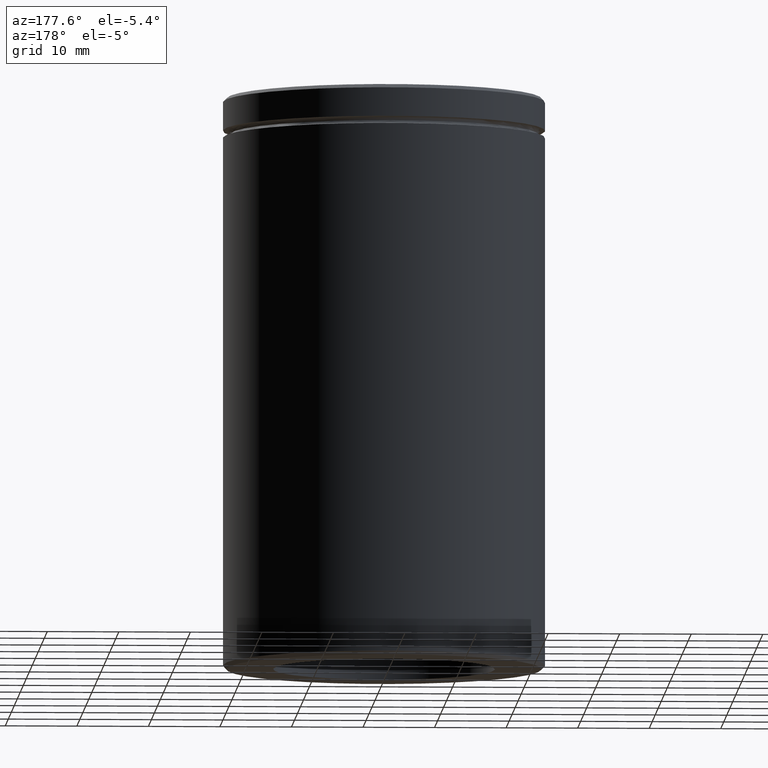
[diagram: clean part render]
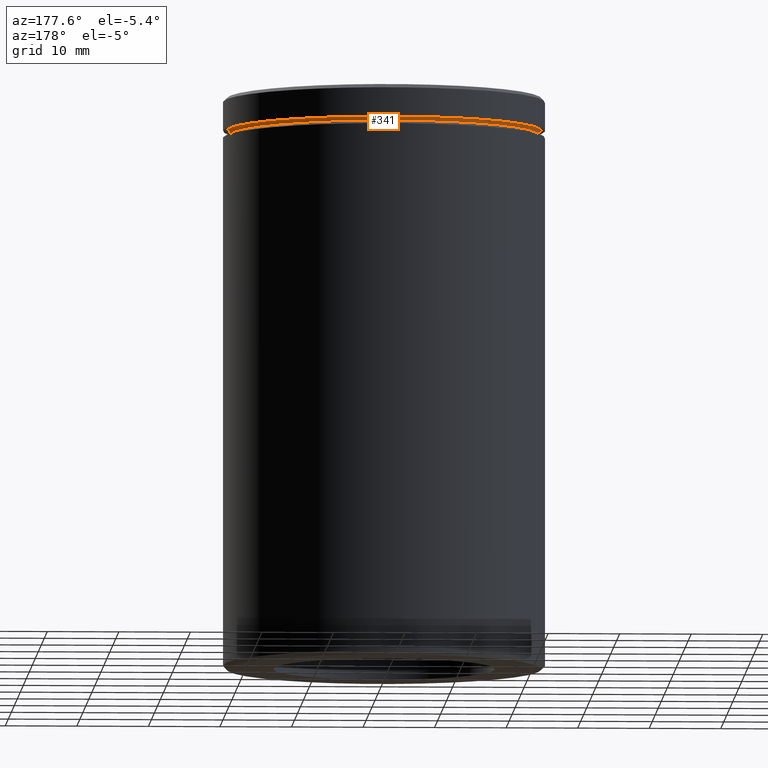
[diagram: same view with one face highlighted and labeled with its STEP entity id]
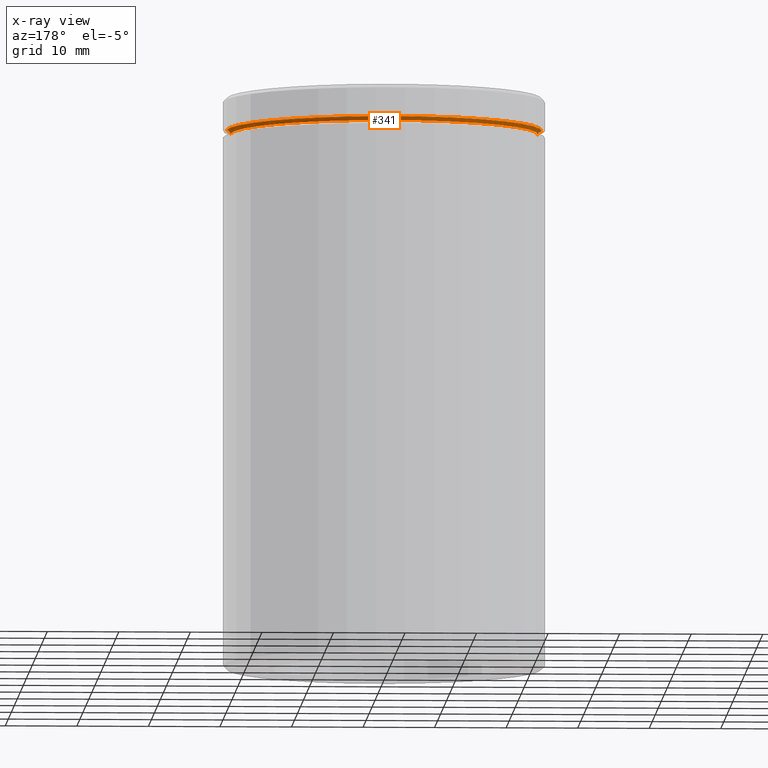
[diagram: x-ray of the same camera — body ghosted, the highlighted face saturated]
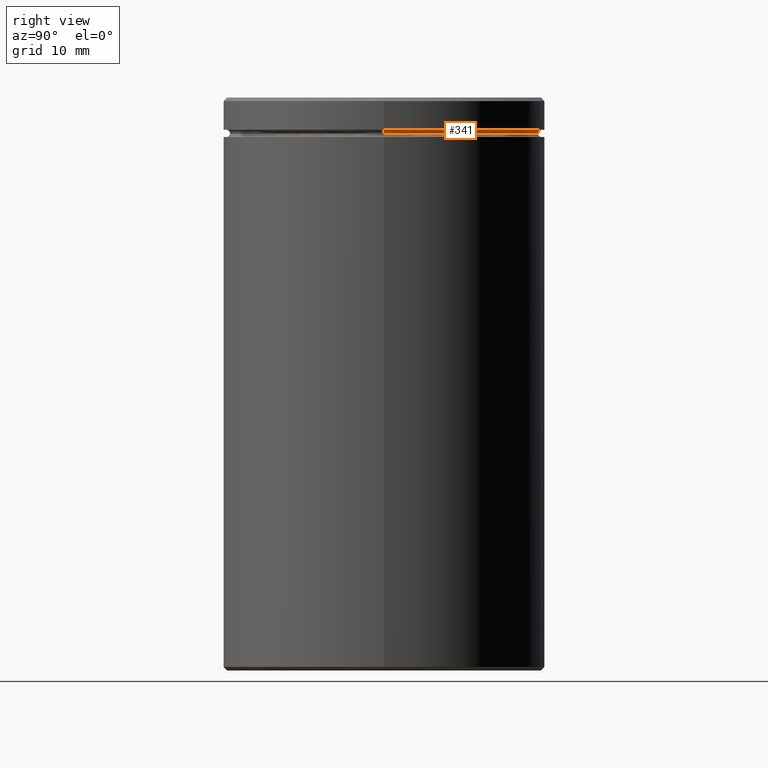
[diagram: same view with one face highlighted and labeled with its STEP entity id]
A machine part, auxiliary view. The second image highlights one B-rep face of the part: STEP entity #341.
The next image is the same camera in x-ray: the body ghosted, the highlighted face saturated — about 0% of this face is hidden behind the body in this view.
A second angle (right view) of the same face is appended — the face is thin or edge-on in the first view.
In plain terms, the highlighted toroidal blend (fillet) surface has major radius 22 mm and minor (blend) radius 0.5 mm.
Its self-contained STEP definition (entity closure, byte-faithful):
#8 = DIRECTION ( 'NONE',  ( -1.000000000000000000, 0.000000000000000000, 0.000000000000000000 ) ) ;
#9 = EDGE_LOOP ( 'NONE', ( #533, #306, #493, #554 ) ) ;
#19 = FACE_OUTER_BOUND ( 'NONE', #9, .T. ) ;
#45 = EDGE_CURVE ( 'NONE', #130, #136, #416, .T. ) ;
#51 = CIRCLE ( 'NONE', #569, 22.00000000000000000 ) ;
#65 = CARTESIAN_POINT ( 'NONE',  ( 0.000000000000000000, 0.000000000000000000, -4.999999999999999112 ) ) ;
#73 = CARTESIAN_POINT ( 'NONE',  ( 22.00000000000000000, 2.694222958124176809E-15, -5.000000000000000888 ) ) ;
#95 = DIRECTION ( 'NONE',  ( -0.000000000000000000, -0.000000000000000000, 1.000000000000000000 ) ) ;
#106 = CARTESIAN_POINT ( 'NONE',  ( 0.000000000000000000, 0.000000000000000000, -5.000000000000000888 ) ) ;
#130 = VERTEX_POINT ( 'NONE', #252 ) ;
#136 = VERTEX_POINT ( 'NONE', #346 ) ;
#169 = TOROIDAL_SURFACE ( 'NONE', #178, 22.00000000000000000, 0.5000000000000000000 ) ;
#170 = VERTEX_POINT ( 'NONE', #444 ) ;
#178 = AXIS2_PLACEMENT_3D ( 'NONE', #106, #288, #461 ) ;
#204 = DIRECTION ( 'NONE',  ( -1.000000000000000000, -1.224646799147349509E-16, 0.000000000000000000 ) ) ;
#223 = CARTESIAN_POINT ( 'NONE',  ( -22.00000000000000000, 0.000000000000000000, -5.000000000000000888 ) ) ;
#232 = EDGE_CURVE ( 'NONE', #170, #528, #518, .T. ) ;
#252 = CARTESIAN_POINT ( 'NONE',  ( 21.50000000000000000, 0.000000000000000000, -4.999999999999999112 ) ) ;
#284 = CIRCLE ( 'NONE', #360, 21.50000000000000000 ) ;
#288 = DIRECTION ( 'NONE',  ( 0.000000000000000000, 0.000000000000000000, -1.000000000000000000 ) ) ;
#306 = ORIENTED_EDGE ( 'NONE', *, *, #348, .T. ) ;
#325 = CARTESIAN_POINT ( 'NONE',  ( 0.000000000000000000, 0.000000000000000000, -4.500000000000000888 ) ) ;
#341 = ADVANCED_FACE ( 'NONE', ( #19 ), #169, .F. ) ;
#346 = CARTESIAN_POINT ( 'NONE',  ( 22.00000000000000000, 2.694222958124176809E-15, -4.500000000000000888 ) ) ;
#348 = EDGE_CURVE ( 'NONE', #130, #170, #284, .T. ) ;
#360 = AXIS2_PLACEMENT_3D ( 'NONE', #65, #426, #380 ) ;
#380 = DIRECTION ( 'NONE',  ( 1.000000000000000000, 0.000000000000000000, 0.000000000000000000 ) ) ;
#385 = AXIS2_PLACEMENT_3D ( 'NONE', #223, #401, #566 ) ;
#399 = DIRECTION ( 'NONE',  ( -1.224646799147353207E-16, 1.000000000000000000, 0.000000000000000000 ) ) ;
#401 = DIRECTION ( 'NONE',  ( -0.000000000000000000, -1.000000000000000000, -0.000000000000000000 ) ) ;
#407 = AXIS2_PLACEMENT_3D ( 'NONE', #73, #399, #204 ) ;
#416 = CIRCLE ( 'NONE', #407, 0.5000000000000004441 ) ;
#426 = DIRECTION ( 'NONE',  ( -0.000000000000000000, -0.000000000000000000, 1.000000000000000000 ) ) ;
#435 = CARTESIAN_POINT ( 'NONE',  ( -22.00000000000000000, 0.000000000000000000, -4.500000000000000888 ) ) ;
#444 = CARTESIAN_POINT ( 'NONE',  ( -21.50000000000000000, 2.663606788145493022E-15, -4.999999999999999112 ) ) ;
#461 = DIRECTION ( 'NONE',  ( -1.000000000000000000, 0.000000000000000000, 0.000000000000000000 ) ) ;
#493 = ORIENTED_EDGE ( 'NONE', *, *, #232, .T. ) ;
#518 = CIRCLE ( 'NONE', #385, 0.5000000000000004441 ) ;
#528 = VERTEX_POINT ( 'NONE', #435 ) ;
#533 = ORIENTED_EDGE ( 'NONE', *, *, #45, .F. ) ;
#554 = ORIENTED_EDGE ( 'NONE', *, *, #563, .F. ) ;
#563 = EDGE_CURVE ( 'NONE', #136, #528, #51, .T. ) ;
#566 = DIRECTION ( 'NONE',  ( 0.000000000000000000, 0.000000000000000000, -1.000000000000000000 ) ) ;
#569 = AXIS2_PLACEMENT_3D ( 'NONE', #325, #95, #8 ) ;